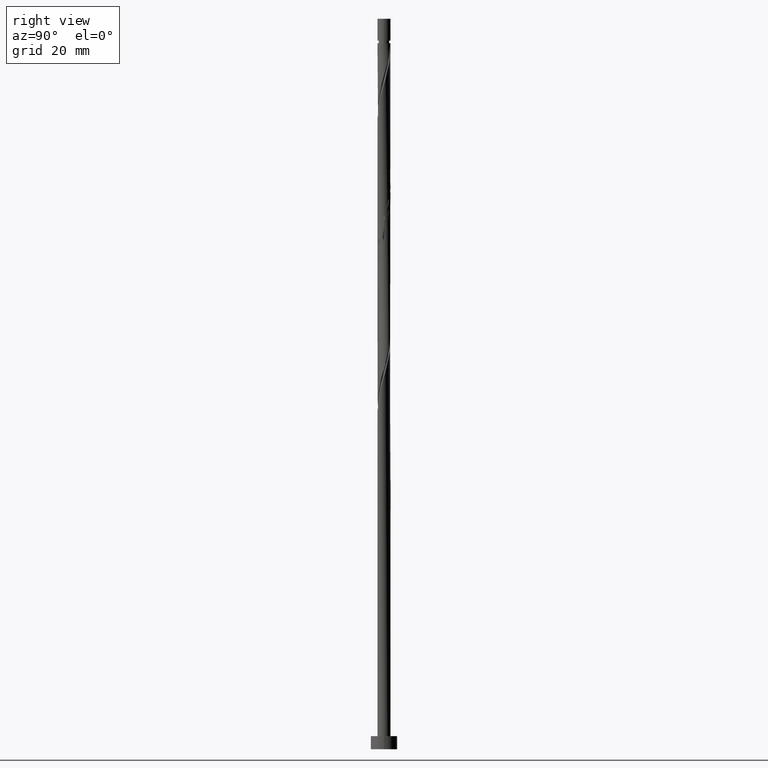
[diagram: clean part render]
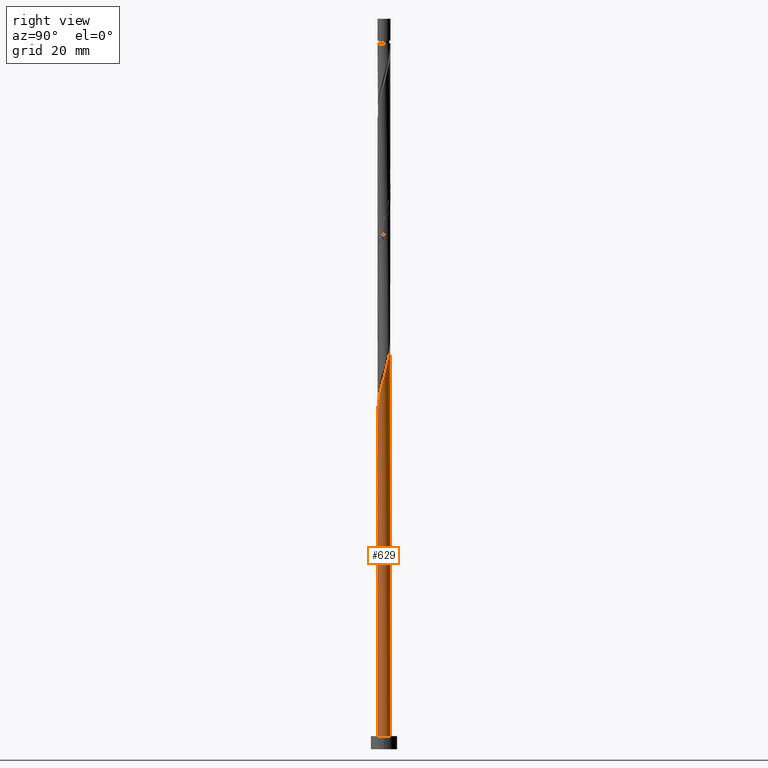
[diagram: same view with one face highlighted and labeled with its STEP entity id]
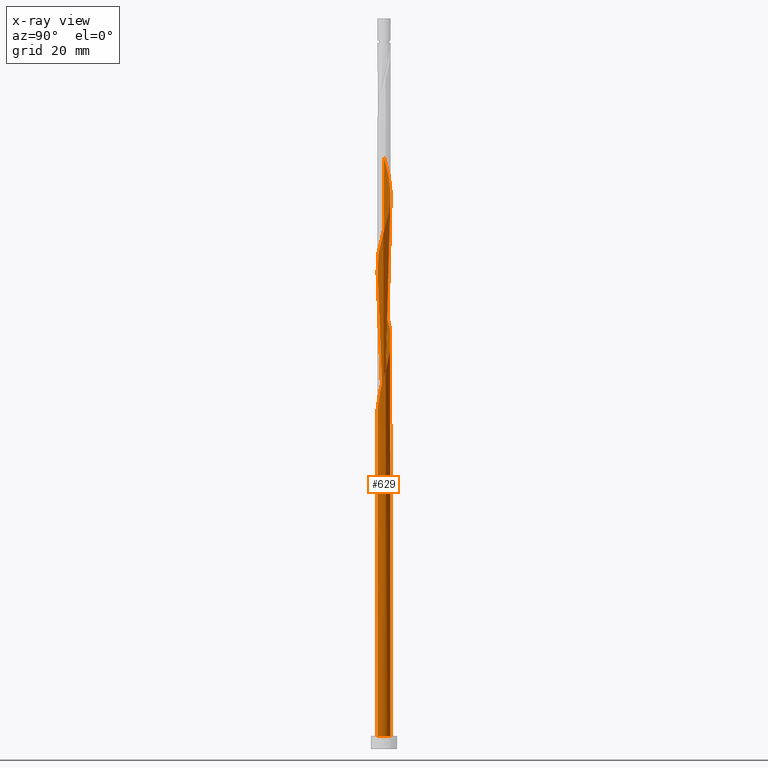
[diagram: x-ray of the same camera — body ghosted, the highlighted face saturated]
A machine part, right view. The second image highlights one B-rep face of the part: STEP entity #629.
The next image is the same camera in x-ray: the body ghosted, the highlighted face saturated — about 0% of this face is hidden behind the body in this view.
In plain terms, the highlighted cylindrical surface (bore or boss wall) has radius 1.5 mm, axis along (-0, -0, -1).
Its self-contained STEP definition (entity closure, byte-faithful):
#1 = CARTESIAN_POINT ( 'NONE',  ( 0.1049670596785140797, -1.509297774348952625, 76.90928252256543374 ) ) ;
#15 = DIRECTION ( 'NONE',  ( 0.000000000000000000, 0.000000000000000000, 1.000000000000000000 ) ) ;
#24 = CARTESIAN_POINT ( 'NONE',  ( 0.4764946809057896693, 1.422305459129119765, 124.8259491892321336 ) ) ;
#26 = CARTESIAN_POINT ( 'NONE',  ( -1.497167474153214606, 0.09213877760036921771, 67.88150474478767649 ) ) ;
#37 = CARTESIAN_POINT ( 'NONE',  ( -1.141457610771798636, 0.9930117713720174599, 131.0759491892321194 ) ) ;
#48 = CARTESIAN_POINT ( 'NONE',  ( -0.09213877760036934261, -1.497167474153214606, 109.5481714114543479 ) ) ;
#57 = CARTESIAN_POINT ( 'NONE',  ( 1.250515677536280457, -0.8283782591521721139, 115.1037269670098766 ) ) ;
#59 = CARTESIAN_POINT ( 'NONE',  ( -1.250515677536281345, 0.8283782591521715588, 65.10372696700990502 ) ) ;
#64 = CARTESIAN_POINT ( 'NONE',  ( -0.9930117713720179040, -1.141457610771797970, 106.0759491892321336 ) ) ;
#69 = AXIS2_PLACEMENT_3D ( 'NONE', #1007, #15, #873 ) ;
#70 = CARTESIAN_POINT ( 'NONE',  ( -1.123809227997131011, 0.9935053190942118029, 66.49261585589879076 ) ) ;
#78 = CARTESIAN_POINT ( 'NONE',  ( -1.430702225651049320, 0.4920254025854586821, 68.57594918923213356 ) ) ;
#86 = VERTEX_POINT ( 'NONE', #496 ) ;
#110 = CARTESIAN_POINT ( 'NONE',  ( -0.1049670596785131083, 1.509297774348952625, 93.57594918923211935 ) ) ;
#122 = CARTESIAN_POINT ( 'NONE',  ( -1.500000000000001998, -7.925505755118549871E-16, 134.8734936451331805 ) ) ;
#126 = CARTESIAN_POINT ( 'NONE',  ( 0.09213877760037017528, 1.497167474153214606, 92.88150474478767649 ) ) ;
#133 = CARTESIAN_POINT ( 'NONE',  ( -1.123809227997133009, -0.9935053190942128021, 72.04817141145436210 ) ) ;
#141 = CARTESIAN_POINT ( 'NONE',  ( 0.4764946809057896693, 1.422305459129119765, 91.49261585589880497 ) ) ;
#149 = CARTESIAN_POINT ( 'NONE',  ( 0.8455530274166266347, -1.254606684622249446, 113.0203936336765622 ) ) ;
#157 = VERTEX_POINT ( 'NONE', #122 ) ;
#159 = CARTESIAN_POINT ( 'NONE',  ( -0.9935053190942130241, 1.123809227997133009, 130.3815047447876907 ) ) ;
#161 = CARTESIAN_POINT ( 'NONE',  ( -1.500000000000001998, -1.293502354373122004E-15, 68.20682697846649489 ) ) ;
#169 = CARTESIAN_POINT ( 'NONE',  ( -1.422305459129119765, 0.4764946809057892252, 99.82594918923213356 ) ) ;
#178 = CARTESIAN_POINT ( 'NONE',  ( -1.123809227997133009, -0.9935053190942128021, 105.3815047447876907 ) ) ;
#185 = CARTESIAN_POINT ( 'NONE',  ( -0.8455530274166273008, 1.254606684622249002, 96.35372696700990502 ) ) ;
#190 = VERTEX_POINT ( 'NONE', #1532 ) ;
#191 =( BOUNDED_CURVE ( )  B_SPLINE_CURVE ( 2, ( #745, #379, #363, #608, #999, #992, #133, #1275, #1017, #624, #1117, #1132, #1124, #1, #371, #1258, #1024, #866, #1625, #1373, #1150, #882, #1141, #1521, #1390, #752, #389, #891, #241, #1401, #493, #1367, #1502, #1528, #141, #236, #126, #110, #737, #273, #1564, #185, #929, #800, #659, #1537, #169, #1045, #679, #1061, #919, #547, #1409, #1548, #178, #64, #1193, #670, #1436, #899, #48, #560, #1068, #1055, #1186, #149, #910, #1557, #57, #769, #311, #791, #650, #1168, #1284, #1160, #433, #1417, #282, #1572, #1035, #1178, #24, #524, #686, #406, #425, #301, #778, #1292, #159, #37, #534, #417, #939, #1311, #554, #1427, #809 ),
 .UNSPECIFIED., .F., .T. ) 
 B_SPLINE_CURVE_WITH_KNOTS ( ( 3, 2, 2, 2, 2, 2, 2, 2, 2, 2, 2, 2, 2, 2, 2, 2, 2, 2, 2, 2, 2, 2, 2, 2, 2, 2, 2, 2, 2, 2, 2, 2, 2, 2, 2, 2, 2, 2, 2, 2, 2, 2, 2, 2, 2, 2, 2, 2, 2, 3 ),
 ( 0.05453176698144637097, 0.06250000000000000000, 0.07291666666666662966, 0.08333333333333337034, 0.09375000000000000000, 0.1041666666666666297, 0.1145833333333333703, 0.1250000000000000000, 0.1354166666666666297, 0.1458333333333333703, 0.1562500000000000000, 0.1666666666666666297, 0.1770833333333333703, 0.1875000000000000000, 0.1979166666666666297, 0.2083333333333333703, 0.2187500000000000000, 0.2291666666666666297, 0.2395833333333333703, 0.2500000000000000000, 0.2604166666666666297, 0.2708333333333333703, 0.2812500000000000000, 0.2916666666666666297, 0.3020833333333333703, 0.3125000000000000000, 0.3229166666666666297, 0.3333333333333333703, 0.3437500000000000000, 0.3541666666666666297, 0.3645833333333333703, 0.3750000000000000000, 0.3854166666666666297, 0.3958333333333333703, 0.4062500000000000000, 0.4166666666666666297, 0.4270833333333333703, 0.4375000000000000000, 0.4479166666666666297, 0.4583333333333333703, 0.4687500000000000000, 0.4791666666666666297, 0.4895833333333333703, 0.5000000000000000000, 0.5104166666666667407, 0.5208333333333332593, 0.5312500000000000000, 0.5416666666666667407, 0.5520833333333332593, 0.5545317669814466832 ),
 .UNSPECIFIED. ) 
 CURVE ( )  GEOMETRIC_REPRESENTATION_ITEM ( )  RATIONAL_B_SPLINE_CURVE ( ( 0.9062941362546551582, 0.9031415850403595735, 0.9090909090909349288, 0.9013135103398532966, 0.9090909090909349288, 0.9013135103398532966, 0.9090909090909349288, 0.9013135103398532966, 0.9090909090909349288, 0.9013135103398532966, 0.9090909090909349288, 0.9013135103398532966, 0.9090909090909349288, 0.9013135103398532966, 0.9090909090909349288, 0.9013135103398532966, 0.9090909090909349288, 0.9013135103398532966, 0.9090909090909349288, 0.9013135103398532966, 0.9090909090909349288, 0.9013135103398532966, 0.9090909090909349288, 0.9013135103398532966, 0.9090909090909349288, 0.9013135103398532966, 0.9090909090909349288, 0.9013135103398532966, 0.9090909090909349288, 0.9013135103398532966, 0.9090909090909349288, 0.9013135103398532966, 0.9090909090909349288, 0.9013135103398532966, 0.9090909090909349288, 0.9013135103398532966, 0.9090909090909349288, 0.9013135103398532966, 0.9090909090909349288, 0.9013135103398532966, 0.9090909090909349288, 0.9013135103398532966, 0.9090909090909349288, 0.9013135103398532966, 0.9090909090909349288, 0.9013135103398532966, 0.9090909090909349288, 0.9013135103398532966, 0.9090909090909349288, 0.9013135103398532966, 0.9090909090909349288, 0.9013135103398532966, 0.9090909090909349288, 0.9013135103398532966, 0.9090909090909349288, 0.9013135103398532966, 0.9090909090909349288, 0.9013135103398532966, 0.9090909090909349288, 0.9013135103398532966, 0.9090909090909349288, 0.9013135103398532966, 0.9090909090909349288, 0.9013135103398532966, 0.9090909090909349288, 0.9013135103398532966, 0.9090909090909349288, 0.9013135103398532966, 0.9090909090909349288, 0.9013135103398532966, 0.9090909090909349288, 0.9013135103398532966, 0.9090909090909349288, 0.9013135103398532966, 0.9090909090909349288, 0.9013135103398532966, 0.9090909090909349288, 0.9013135103398532966, 0.9090909090909349288, 0.9013135103398532966, 0.9090909090909349288, 0.9013135103398532966, 0.9090909090909349288, 0.9013135103398532966, 0.9090909090909349288, 0.9013135103398532966, 0.9090909090909349288, 0.9013135103398532966, 0.9090909090909349288, 0.9013135103398532966, 0.9090909090909349288, 0.9013135103398532966, 0.9090909090909349288, 0.9013135103398532966, 0.9090909090909349288, 0.9013135103398532966, 0.9090909090909349288, 0.9072628343904283188, 0.9062941362546548252 ) ) 
 REPRESENTATION_ITEM ( '' )  );
#200 = CARTESIAN_POINT ( 'NONE',  ( -1.469999999999999751, 0.2984962311319867001, 69.27039363367656222 ) ) ;
#204 = VERTEX_POINT ( 'NONE', #422 ) ;
#210 = CARTESIAN_POINT ( 'NONE',  ( -1.499999999999999556, 0.1507556722888853951, 69.80053391969732957 ) ) ;
#218 = CIRCLE ( 'NONE', #660, 1.500000000000000222 ) ;
#236 = CARTESIAN_POINT ( 'NONE',  ( 0.2892446148792534588, 1.485037173957476586, 92.18706030034321941 ) ) ;
#241 = CARTESIAN_POINT ( 'NONE',  ( 1.342654455136651048, 0.6687892150010423808, 87.32594918923213356 ) ) ;
#245 = CARTESIAN_POINT ( 'NONE',  ( -0.4764946809057878929, 1.422305459129117766, 63.71483807812101929 ) ) ;
#271 = VERTEX_POINT ( 'NONE', #306 ) ;
#273 = CARTESIAN_POINT ( 'NONE',  ( -0.4920254025854590152, 1.430702225651051540, 94.96483807812100508 ) ) ;
#282 = CARTESIAN_POINT ( 'NONE',  ( 1.123809227997134119, 0.9935053190942122470, 122.0481714114543621 ) ) ;
#294 = CARTESIAN_POINT ( 'NONE',  ( -1.359573744300763387, 0.6637447469323254357, 65.79817141145434789 ) ) ;
#301 = CARTESIAN_POINT ( 'NONE',  ( -0.4920254025854590152, 1.430702225651051540, 128.2981714114543195 ) ) ;
#303 = CARTESIAN_POINT ( 'NONE',  ( -1.422305459129119765, 0.4764946809057892252, 66.49261585589880497 ) ) ;
#306 = CARTESIAN_POINT ( 'NONE',  ( 0.2984962311319870332, 1.469999999999999751, 60.93706030034324073 ) ) ;
#311 = CARTESIAN_POINT ( 'NONE',  ( 1.422305459129120209, -0.4764946809057896693, 116.4926158558987908 ) ) ;
#363 = CARTESIAN_POINT ( 'NONE',  ( -1.470000000000001972, -0.2984962311319868666, 69.27039363367656222 ) ) ;
#367 = CARTESIAN_POINT ( 'NONE',  ( -1.500000000000000444, 1.988853331001461045E-15, 70.33396028888662954 ) ) ;
#369 = EDGE_CURVE ( 'NONE', #833, #204, #218, .T. ) ;
#371 = CARTESIAN_POINT ( 'NONE',  ( 0.2984962311319867556, -1.470000000000001972, 77.60372696700991924 ) ) ;
#379 = CARTESIAN_POINT ( 'NONE',  ( -1.500000000000001998, -0.1507556722888832024, 68.74025334765576645 ) ) ;
#389 = CARTESIAN_POINT ( 'NONE',  ( 1.470000000000001972, 0.2984962311319865891, 85.93706030034321941 ) ) ;
#392 = EDGE_CURVE ( 'NONE', #86, #1093, #818, .T. ) ;
#406 = CARTESIAN_POINT ( 'NONE',  ( -0.1049670596785131083, 1.509297774348952625, 126.9092825225654479 ) ) ;
#417 = CARTESIAN_POINT ( 'NONE',  ( -1.359573744300763387, 0.6637447469323254357, 132.4648380781209767 ) ) ;
#422 = CARTESIAN_POINT ( 'NONE',  ( -1.500000000000000222, 0.000000000000000000, 3.000000000000000000 ) ) ;
#425 = CARTESIAN_POINT ( 'NONE',  ( -0.2984962311319864225, 1.470000000000001972, 127.6037269670099192 ) ) ;
#433 = CARTESIAN_POINT ( 'NONE',  ( 1.342654455136651048, 0.6687892150010423808, 120.6592825225654764 ) ) ;
#437 = DIRECTION ( 'NONE',  ( 1.000000000000000000, 0.000000000000000000, 0.000000000000000000 ) ) ;
#444 = CARTESIAN_POINT ( 'NONE',  ( -0.4920254025854590152, 1.430702225651051540, 61.63150474478766938 ) ) ;
#449 = CARTESIAN_POINT ( 'NONE',  ( -1.500000000000000222, 0.000000000000000000, 166.5200000000000102 ) ) ;
#493 = CARTESIAN_POINT ( 'NONE',  ( 1.123809227997134119, 0.9935053190942122470, 88.71483807812101929 ) ) ;
#496 = CARTESIAN_POINT ( 'NONE',  ( -0.2984962311319864781, 1.470000000000001972, 60.93706030034324073 ) ) ;
#524 = CARTESIAN_POINT ( 'NONE',  ( 0.2892446148792534588, 1.485037173957476586, 125.5203936336765622 ) ) ;
#531 = ORIENTED_EDGE ( 'NONE', *, *, #1567, .F. ) ;
#534 = CARTESIAN_POINT ( 'NONE',  ( -1.250515677536281345, 0.8283782591521715588, 131.7703936336765764 ) ) ;
#544 = ORIENTED_EDGE ( 'NONE', *, *, #908, .F. ) ;
#547 = CARTESIAN_POINT ( 'NONE',  ( -1.430702225651051984, -0.4920254025854586821, 103.2981714114543337 ) ) ;
#554 = CARTESIAN_POINT ( 'NONE',  ( -1.497167474153214606, 0.09213877760036921771, 134.5481714114543479 ) ) ;
#560 = CARTESIAN_POINT ( 'NONE',  ( 0.1049670596785140797, -1.509297774348952625, 110.2426158558987765 ) ) ;
#563 = EDGE_CURVE ( 'NONE', #86, #271, #1062, .T. ) ;
#571 = CARTESIAN_POINT ( 'NONE',  ( 0.000000000000000000, 0.000000000000000000, 166.5200000000000102 ) ) ;
#575 = ORIENTED_EDGE ( 'NONE', *, *, #1027, .F. ) ;
#602 = CYLINDRICAL_SURFACE ( 'NONE', #742, 1.500000000000000222 ) ;
#608 = CARTESIAN_POINT ( 'NONE',  ( -1.430702225651051984, -0.4920254025854586821, 69.96483807812101929 ) ) ;
#614 = DIRECTION ( 'NONE',  ( -0.000000000000000000, -0.000000000000000000, -1.000000000000000000 ) ) ;
#617 = CARTESIAN_POINT ( 'NONE',  ( 1.500000000000000222, 0.000000000000000000, 3.000000000000000000 ) ) ;
#624 = CARTESIAN_POINT ( 'NONE',  ( -0.6637447469323257687, -1.359573744300763609, 74.13150474478769070 ) ) ;
#629 = ADVANCED_FACE ( 'NONE', ( #1236 ), #602, .T. ) ;
#650 = CARTESIAN_POINT ( 'NONE',  ( 1.497167474153214606, -0.09213877760037010589, 117.8815047447876907 ) ) ;
#652 = CARTESIAN_POINT ( 'NONE',  ( -0.6687892150010430470, 1.342654455136651048, 62.32594918923210514 ) ) ;
#659 = CARTESIAN_POINT ( 'NONE',  ( -1.250515677536281345, 0.8283782591521715588, 98.43706030034326204 ) ) ;
#660 = AXIS2_PLACEMENT_3D ( 'NONE', #1072, #1575, #437 ) ;
#670 = CARTESIAN_POINT ( 'NONE',  ( -0.6637447469323257687, -1.359573744300763609, 107.4648380781209909 ) ) ;
#679 = CARTESIAN_POINT ( 'NONE',  ( -1.497167474153214606, 0.09213877760036921771, 101.2148380781210051 ) ) ;
#681 = CARTESIAN_POINT ( 'NONE',  ( -1.141457610771798636, 0.9930117713720174599, 64.40928252256546216 ) ) ;
#686 = CARTESIAN_POINT ( 'NONE',  ( 0.09213877760037017528, 1.497167474153214606, 126.2148380781210051 ) ) ;
#701 = CARTESIAN_POINT ( 'NONE',  ( -1.500000000000001998, -1.293502354373122004E-15, 68.20682697846649489 ) ) ;
#704 = ORIENTED_EDGE ( 'NONE', *, *, #369, .T. ) ;
#708 = CARTESIAN_POINT ( 'NONE',  ( 0.1049670596785147597, 1.509297774348950849, 61.63150474478769070 ) ) ;
#716 = CARTESIAN_POINT ( 'NONE',  ( -1.254606684622247226, 0.8455530274166267457, 67.18706030034326204 ) ) ;
#737 = CARTESIAN_POINT ( 'NONE',  ( -0.2984962311319864225, 1.470000000000001972, 94.27039363367659064 ) ) ;
#741 = CARTESIAN_POINT ( 'NONE',  ( -0.9930117713720160166, 1.141457610771797970, 65.79817141145436210 ) ) ;
#742 = AXIS2_PLACEMENT_3D ( 'NONE', #571, #1219, #1077 ) ;
#745 = CARTESIAN_POINT ( 'NONE',  ( -1.500000000000001998, -1.293502354373122004E-15, 68.20682697846649489 ) ) ;
#750 = LINE ( 'NONE', #1263, #1443 ) ;
#752 = CARTESIAN_POINT ( 'NONE',  ( 1.509297774348952625, 0.1049670596785132887, 85.24261585589877654 ) ) ;
#769 = CARTESIAN_POINT ( 'NONE',  ( 1.359573744300763387, -0.6637447469323257687, 115.7981714114543337 ) ) ;
#778 = CARTESIAN_POINT ( 'NONE',  ( -0.6687892150010430470, 1.342654455136651048, 128.9926158558988050 ) ) ;
#791 = CARTESIAN_POINT ( 'NONE',  ( 1.485037173957476586, -0.2892446148792533478, 117.1870603003432194 ) ) ;
#793 = CARTESIAN_POINT ( 'NONE',  ( -0.8455530274166273008, 1.254606684622249002, 63.02039363367655511 ) ) ;
#800 = CARTESIAN_POINT ( 'NONE',  ( -1.141457610771798636, 0.9930117713720174599, 97.74261585589877654 ) ) ;
#809 = CARTESIAN_POINT ( 'NONE',  ( -1.500000000000001998, -7.925505755118549871E-16, 134.8734936451331805 ) ) ;
#815 = CARTESIAN_POINT ( 'NONE',  ( 0.2984962311319870887, 1.469999999999999751, 60.93706030034324783 ) ) ;
#818 =( BOUNDED_CURVE ( )  B_SPLINE_CURVE ( 2, ( #1321, #444, #652, #793, #948, #681, #59, #294, #303, #933, #26, #1320, #161 ),
 .UNSPECIFIED., .F., .T. ) 
 B_SPLINE_CURVE_WITH_KNOTS ( ( 3, 2, 2, 2, 2, 2, 3 ),
 ( 0.000000000000000000, 0.01041666666666662966, 0.02083333333333337034, 0.03125000000000000000, 0.04166666666666662966, 0.05208333333333337034, 0.05453176698144637097 ),
 .UNSPECIFIED. ) 
 CURVE ( )  GEOMETRIC_REPRESENTATION_ITEM ( )  RATIONAL_B_SPLINE_CURVE ( ( 0.9090909090909349288, 0.9013135103398532966, 0.9090909090909349288, 0.9013135103398532966, 0.9090909090909349288, 0.9013135103398532966, 0.9090909090909349288, 0.9013135103398532966, 0.9090909090909349288, 0.9013135103398532966, 0.9090909090909349288, 0.9072628343904286519, 0.9062941362546551582 ) ) 
 REPRESENTATION_ITEM ( '' )  );
#833 = VERTEX_POINT ( 'NONE', #617 ) ;
#858 = EDGE_CURVE ( 'NONE', #204, #833, #1044, .T. ) ;
#860 = DIRECTION ( 'NONE',  ( 0.000000000000000000, -0.000000000000000000, -1.000000000000000000 ) ) ;
#866 = CARTESIAN_POINT ( 'NONE',  ( 0.8455530274166266347, -1.254606684622249446, 79.68706030034323362 ) ) ;
#873 = DIRECTION ( 'NONE',  ( 1.000000000000000000, 0.000000000000000000, 0.000000000000000000 ) ) ;
#882 = CARTESIAN_POINT ( 'NONE',  ( 1.359573744300763387, -0.6637447469323257687, 82.46483807812100508 ) ) ;
#891 = CARTESIAN_POINT ( 'NONE',  ( 1.430702225651051984, 0.4920254025854585711, 86.63150474478766228 ) ) ;
#899 = CARTESIAN_POINT ( 'NONE',  ( -0.2892446148792527372, -1.485037173957476586, 108.8537269670098908 ) ) ;
#908 = EDGE_CURVE ( 'NONE', #1093, #157, #191, .T. ) ;
#910 = CARTESIAN_POINT ( 'NONE',  ( 0.9935053190942126911, -1.123809227997133231, 113.7148380781209909 ) ) ;
#919 = CARTESIAN_POINT ( 'NONE',  ( -1.470000000000001972, -0.2984962311319868666, 102.6037269670099050 ) ) ;
#929 = CARTESIAN_POINT ( 'NONE',  ( -0.9935053190942130241, 1.123809227997133009, 97.04817141145433368 ) ) ;
#933 = CARTESIAN_POINT ( 'NONE',  ( -1.485037173957476586, 0.2892446148792525151, 67.18706030034323362 ) ) ;
#939 = CARTESIAN_POINT ( 'NONE',  ( -1.422305459129119765, 0.4764946809057892252, 133.1592825225654622 ) ) ;
#948 = CARTESIAN_POINT ( 'NONE',  ( -0.9935053190942130241, 1.123809227997133009, 63.71483807812101929 ) ) ;
#983 = EDGE_LOOP ( 'NONE', ( #1215, #544, #1464, #1628, #704, #531, #1299, #1420, #575 ) ) ;
#985 = CARTESIAN_POINT ( 'NONE',  ( 0.000000000000000000, 0.000000000000000000, 60.93706030034324073 ) ) ;
#992 = CARTESIAN_POINT ( 'NONE',  ( -1.254606684622249224, -0.8455530274166269677, 71.35372696700987660 ) ) ;
#996 = CARTESIAN_POINT ( 'NONE',  ( -0.8283782591521700045, 1.250515677536279568, 65.10372696700990502 ) ) ;
#999 = CARTESIAN_POINT ( 'NONE',  ( -1.342654455136651048, -0.6687892150010428249, 70.65928252256544795 ) ) ;
#1007 = CARTESIAN_POINT ( 'NONE',  ( 0.000000000000000000, 0.000000000000000000, 3.000000000000000000 ) ) ;
#1017 = CARTESIAN_POINT ( 'NONE',  ( -0.8283782591521715588, -1.250515677536281345, 73.43706030034321941 ) ) ;
#1024 = CARTESIAN_POINT ( 'NONE',  ( 0.6687892150010424919, -1.342654455136651048, 78.99261585589881918 ) ) ;
#1027 = EDGE_CURVE ( 'NONE', #190, #271, #1391, .T. ) ;
#1035 = CARTESIAN_POINT ( 'NONE',  ( 0.8283782591521716698, 1.250515677536281123, 123.4370603003432336 ) ) ;
#1044 = CIRCLE ( 'NONE', #69, 1.500000000000000222 ) ;
#1045 = CARTESIAN_POINT ( 'NONE',  ( -1.485037173957476586, 0.2892446148792525151, 100.5203936336765622 ) ) ;
#1055 = CARTESIAN_POINT ( 'NONE',  ( 0.4920254025854585711, -1.430702225651051984, 111.6315047447876481 ) ) ;
#1061 = CARTESIAN_POINT ( 'NONE',  ( -1.509297774348952625, -0.1049670596785145099, 101.9092825225654053 ) ) ;
#1062 = CIRCLE ( 'NONE', #1138, 1.500000000000000222 ) ;
#1068 = CARTESIAN_POINT ( 'NONE',  ( 0.2984962311319867556, -1.470000000000001972, 110.9370603003432478 ) ) ;
#1070 = VECTOR ( 'NONE', #614, 1000.000000000000000 ) ;
#1072 = CARTESIAN_POINT ( 'NONE',  ( 0.000000000000000000, 0.000000000000000000, 3.000000000000000000 ) ) ;
#1075 = CARTESIAN_POINT ( 'NONE',  ( -0.6637447469323243254, 1.359573744300762055, 64.40928252256547637 ) ) ;
#1077 = DIRECTION ( 'NONE',  ( -1.000000000000000000, 0.000000000000000000, 0.000000000000000000 ) ) ;
#1093 = VERTEX_POINT ( 'NONE', #701 ) ;
#1117 = CARTESIAN_POINT ( 'NONE',  ( -0.4764946809057895583, -1.422305459129120209, 74.82594918923213356 ) ) ;
#1124 = CARTESIAN_POINT ( 'NONE',  ( -0.09213877760036934261, -1.497167474153214606, 76.21483807812101929 ) ) ;
#1128 = LINE ( 'NONE', #449, #1070 ) ;
#1132 = CARTESIAN_POINT ( 'NONE',  ( -0.2892446148792527372, -1.485037173957476586, 75.52039363367656222 ) ) ;
#1138 = AXIS2_PLACEMENT_3D ( 'NONE', #985, #860, #1481 ) ;
#1141 = CARTESIAN_POINT ( 'NONE',  ( 1.422305459129120209, -0.4764946809057896693, 83.15928252256547637 ) ) ;
#1150 = CARTESIAN_POINT ( 'NONE',  ( 1.250515677536280457, -0.8283782591521721139, 81.77039363367656222 ) ) ;
#1160 = CARTESIAN_POINT ( 'NONE',  ( 1.430702225651051984, 0.4920254025854585711, 119.9648380781210193 ) ) ;
#1168 = CARTESIAN_POINT ( 'NONE',  ( 1.509297774348952625, 0.1049670596785132887, 118.5759491892321336 ) ) ;
#1178 = CARTESIAN_POINT ( 'NONE',  ( 0.6637447469323261018, 1.359573744300763387, 124.1315047447876623 ) ) ;
#1186 = CARTESIAN_POINT ( 'NONE',  ( 0.6687892150010424919, -1.342654455136651048, 112.3259491892321336 ) ) ;
#1193 = CARTESIAN_POINT ( 'NONE',  ( -0.8283782591521715588, -1.250515677536281345, 106.7703936336765906 ) ) ;
#1215 = ORIENTED_EDGE ( 'NONE', *, *, #1249, .F. ) ;
#1219 = DIRECTION ( 'NONE',  ( -0.000000000000000000, -0.000000000000000000, -1.000000000000000000 ) ) ;
#1236 = FACE_OUTER_BOUND ( 'NONE', #983, .T. ) ;
#1249 = EDGE_CURVE ( 'NONE', #157, #190, #1128, .T. ) ;
#1256 = DIRECTION ( 'NONE',  ( -0.000000000000000000, -0.000000000000000000, -1.000000000000000000 ) ) ;
#1258 = CARTESIAN_POINT ( 'NONE',  ( 0.4920254025854585711, -1.430702225651051984, 78.29817141145437631 ) ) ;
#1263 = CARTESIAN_POINT ( 'NONE',  ( -1.500000000000000222, 0.000000000000000000, 166.5200000000000102 ) ) ;
#1275 = CARTESIAN_POINT ( 'NONE',  ( -0.9930117713720179040, -1.141457610771797970, 72.74261585589877654 ) ) ;
#1284 = CARTESIAN_POINT ( 'NONE',  ( 1.470000000000001972, 0.2984962311319865891, 119.2703936336765764 ) ) ;
#1292 = CARTESIAN_POINT ( 'NONE',  ( -0.8455530274166273008, 1.254606684622249002, 129.6870603003432336 ) ) ;
#1299 = ORIENTED_EDGE ( 'NONE', *, *, #392, .F. ) ;
#1311 = CARTESIAN_POINT ( 'NONE',  ( -1.485037173957476586, 0.2892446148792525151, 133.8537269670098908 ) ) ;
#1320 = CARTESIAN_POINT ( 'NONE',  ( -1.500000000000001998, 0.04611292748650909490, 68.04366329043834583 ) ) ;
#1321 = CARTESIAN_POINT ( 'NONE',  ( -0.2984962311319864225, 1.470000000000001972, 60.93706030034324073 ) ) ;
#1334 = CARTESIAN_POINT ( 'NONE',  ( -0.09213877760036853770, 1.497167474153212829, 62.32594918923210514 ) ) ;
#1367 = CARTESIAN_POINT ( 'NONE',  ( 0.9930117713720185701, 1.141457610771797526, 89.40928252256546216 ) ) ;
#1373 = CARTESIAN_POINT ( 'NONE',  ( 1.141457610771797970, -0.9930117713720179040, 81.07594918923211935 ) ) ;
#1378 = CARTESIAN_POINT ( 'NONE',  ( -1.342654455136647940, 0.6687892150010427139, 67.88150474478766228 ) ) ;
#1390 = CARTESIAN_POINT ( 'NONE',  ( 1.497167474153214606, -0.09213877760037010589, 84.54817141145434789 ) ) ;
#1391 =( BOUNDED_CURVE ( )  B_SPLINE_CURVE ( 2, ( #367, #210, #200, #78, #1378, #716, #70, #741, #996, #1075, #245, #1622, #1334, #708, #815 ),
 .UNSPECIFIED., .F., .T. ) 
 B_SPLINE_CURVE_WITH_KNOTS ( ( 3, 2, 2, 2, 2, 2, 2, 3 ),
 ( 0.9295317669814464612, 0.9375000000000000000, 0.9479166666666666297, 0.9583333333333333703, 0.9687500000000000000, 0.9791666666666666297, 0.9895833333333333703, 1.000000000000000000 ),
 .UNSPECIFIED. ) 
 CURVE ( )  GEOMETRIC_REPRESENTATION_ITEM ( )  RATIONAL_B_SPLINE_CURVE ( ( 0.9062941362546492741, 0.9031415850403538004, 0.9090909090909291557, 0.9013135103398474124, 0.9090909090909291557, 0.9013135103398474124, 0.9090909090909291557, 0.9013135103398474124, 0.9090909090909291557, 0.9013135103398474124, 0.9090909090909291557, 0.9013135103398474124, 0.9090909090909291557, 0.9013135103398474124, 0.9090909090909291557 ) ) 
 REPRESENTATION_ITEM ( '' )  );
#1401 = CARTESIAN_POINT ( 'NONE',  ( 1.254606684622249446, 0.8455530274166264126, 88.02039363367656222 ) ) ;
#1409 = CARTESIAN_POINT ( 'NONE',  ( -1.342654455136651048, -0.6687892150010428249, 103.9926158558988050 ) ) ;
#1417 = CARTESIAN_POINT ( 'NONE',  ( 1.254606684622249446, 0.8455530274166264126, 121.3537269670099050 ) ) ;
#1420 = ORIENTED_EDGE ( 'NONE', *, *, #563, .T. ) ;
#1427 = CARTESIAN_POINT ( 'NONE',  ( -1.500000000000002887, 0.04611292748650162171, 134.7103299571050457 ) ) ;
#1436 = CARTESIAN_POINT ( 'NONE',  ( -0.4764946809057895583, -1.422305459129120209, 108.1592825225654479 ) ) ;
#1443 = VECTOR ( 'NONE', #1256, 1000.000000000000000 ) ;
#1464 = ORIENTED_EDGE ( 'NONE', *, *, #1567, .T. ) ;
#1481 = DIRECTION ( 'NONE',  ( -1.000000000000000000, 0.000000000000000000, 0.000000000000000000 ) ) ;
#1502 = CARTESIAN_POINT ( 'NONE',  ( 0.8283782591521716698, 1.250515677536281123, 90.10372696700987660 ) ) ;
#1521 = CARTESIAN_POINT ( 'NONE',  ( 1.485037173957476586, -0.2892446148792533478, 83.85372696700986239 ) ) ;
#1528 = CARTESIAN_POINT ( 'NONE',  ( 0.6637447469323261018, 1.359573744300763387, 90.79817141145434789 ) ) ;
#1532 = CARTESIAN_POINT ( 'NONE',  ( -1.500000000000000444, 1.988853331001461045E-15, 70.33396028888662954 ) ) ;
#1537 = CARTESIAN_POINT ( 'NONE',  ( -1.359573744300763387, 0.6637447469323254357, 99.13150474478767649 ) ) ;
#1548 = CARTESIAN_POINT ( 'NONE',  ( -1.254606684622249224, -0.8455530274166269677, 104.6870603003432620 ) ) ;
#1557 = CARTESIAN_POINT ( 'NONE',  ( 1.141457610771797970, -0.9930117713720179040, 114.4092825225654337 ) ) ;
#1564 = CARTESIAN_POINT ( 'NONE',  ( -0.6687892150010430470, 1.342654455136651048, 95.65928252256544795 ) ) ;
#1567 = EDGE_CURVE ( 'NONE', #1093, #204, #750, .T. ) ;
#1572 = CARTESIAN_POINT ( 'NONE',  ( 0.9930117713720185701, 1.141457610771797526, 122.7426158558987623 ) ) ;
#1575 = DIRECTION ( 'NONE',  ( 0.000000000000000000, 0.000000000000000000, 1.000000000000000000 ) ) ;
#1622 = CARTESIAN_POINT ( 'NONE',  ( -0.2892446148792520155, 1.485037173957474366, 63.02039363367657643 ) ) ;
#1625 = CARTESIAN_POINT ( 'NONE',  ( 0.9935053190942126911, -1.123809227997133231, 80.38150474478767649 ) ) ;
#1628 = ORIENTED_EDGE ( 'NONE', *, *, #858, .T. ) ;